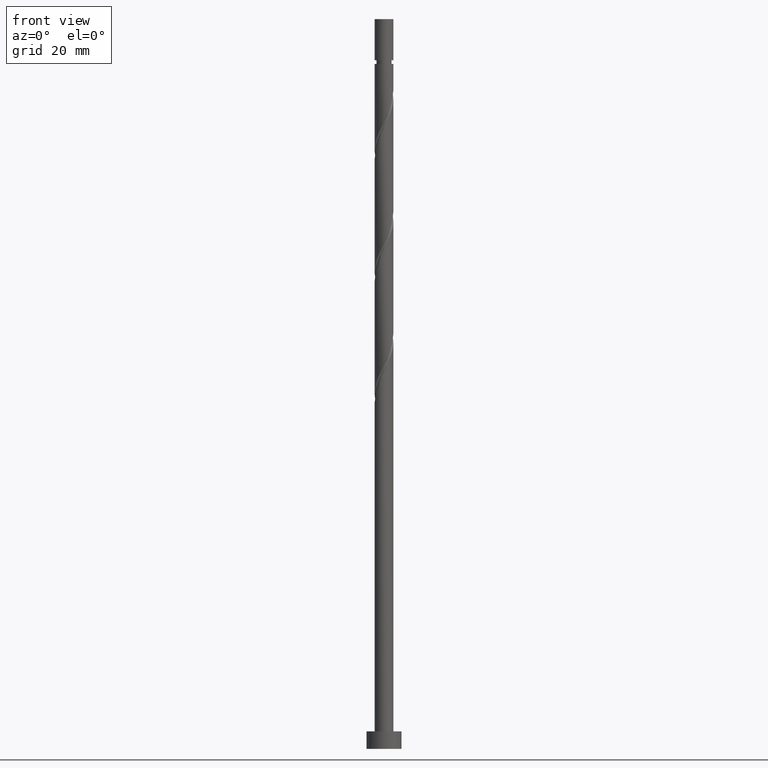
[diagram: clean part render]
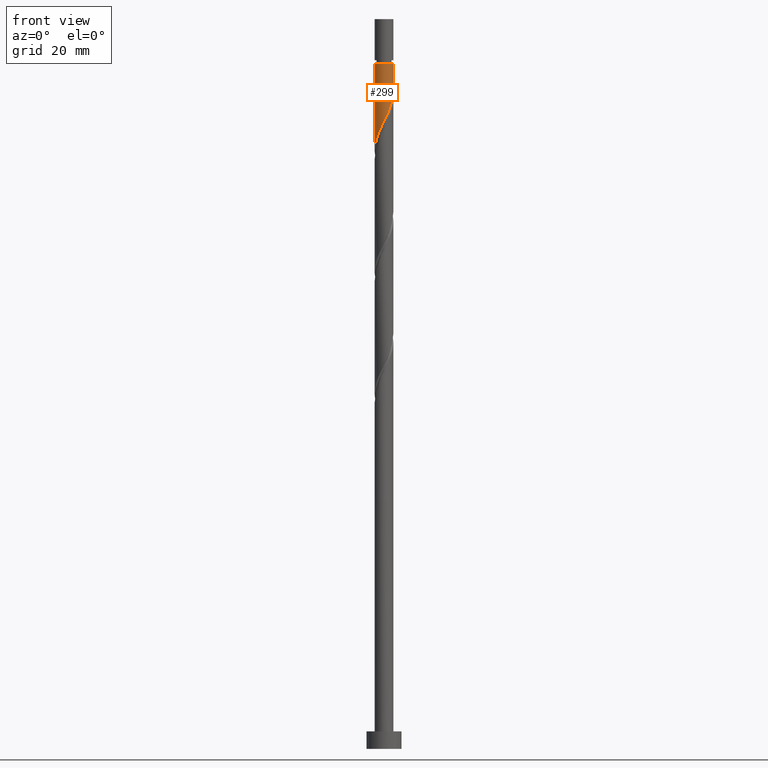
[diagram: same view with one face highlighted and labeled with its STEP entity id]
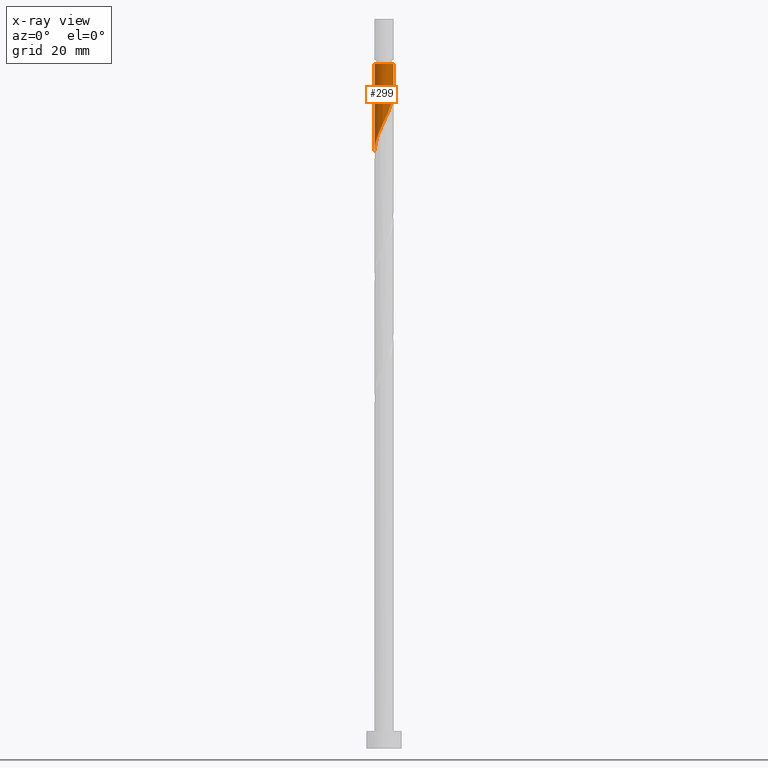
[diagram: x-ray of the same camera — body ghosted, the highlighted face saturated]
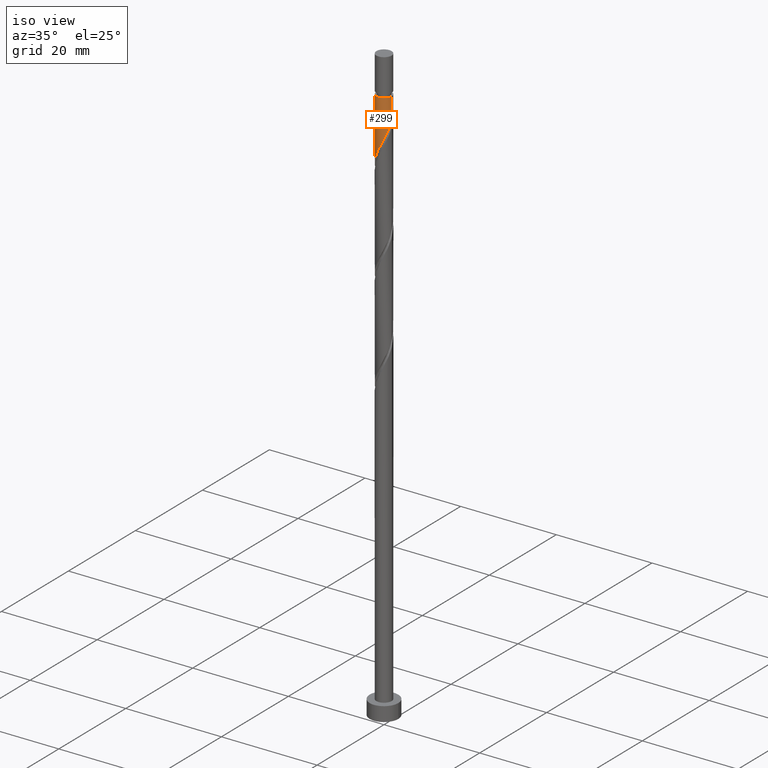
[diagram: same view with one face highlighted and labeled with its STEP entity id]
A machine part, front view. The second image highlights one B-rep face of the part: STEP entity #299.
The next image is the same camera in x-ray: the body ghosted, the highlighted face saturated — about 0% of this face is hidden behind the body in this view.
A second angle (iso view) of the same face is appended — the face is thin or edge-on in the first view.
In plain terms, the highlighted cylindrical surface (edge-blend (fillet) strip) has radius 1.6 mm, axis along (-0, -0, -1).
Its self-contained STEP definition (entity closure, byte-faithful):
#30 = CARTESIAN_POINT ( 'NONE',  ( -1.599999999999999645, -0.09115797991428821467, 102.5375994344350801 ) ) ;
#58 = ORIENTED_EDGE ( 'NONE', *, *, #640, .T. ) ;
#59 = CARTESIAN_POINT ( 'NONE',  ( 0.6640595169357718097, -1.455687108539134966, 108.9749525704242359 ) ) ;
#67 = CARTESIAN_POINT ( 'NONE',  ( 1.599999999999999423, 6.072206627198340509E-16, 112.7647550118944793 ) ) ;
#121 = DIRECTION ( 'NONE',  ( -0.000000000000000000, -0.000000000000000000, -1.000000000000000000 ) ) ;
#145 = CARTESIAN_POINT ( 'NONE',  ( -1.599999999999999645, 1.454330969970960778E-15, 102.3480883452278221 ) ) ;
#221 = DIRECTION ( 'NONE',  ( -0.000000000000000000, -0.000000000000000000, -1.000000000000000000 ) ) ;
#241 = CARTESIAN_POINT ( 'NONE',  ( 0.000000000000000000, 0.000000000000000000, 125.0000000000000000 ) ) ;
#254 = EDGE_CURVE ( 'NONE', #362, #652, #1472, .T. ) ;
#283 = CARTESIAN_POINT ( 'NONE',  ( -0.07004917744524610801, -1.618428969073944179, 107.4124525704242217 ) ) ;
#299 = ADVANCED_FACE ( 'NONE', ( #963 ), #1441, .T. ) ;
#302 = CARTESIAN_POINT ( 'NONE',  ( 1.081390185820699124, -1.179235034253423464, 110.0166192370908789 ) ) ;
#310 = CARTESIAN_POINT ( 'NONE',  ( -1.589646386272566492, -0.1817260757584560626, 102.7249525704242359 ) ) ;
#362 = VERTEX_POINT ( 'NONE', #67 ) ;
#414 = LINE ( 'NONE', #1273, #555 ) ;
#419 = CARTESIAN_POINT ( 'NONE',  ( -1.455687108539134966, -0.6640595169357718097, 103.7666192370908931 ) ) ;
#478 = VECTOR ( 'NONE', #1434, 1000.000000000000000 ) ;
#505 = CARTESIAN_POINT ( 'NONE',  ( -0.3183959798741189395, -1.568000000000000060, 106.8916192370908647 ) ) ;
#521 = CARTESIAN_POINT ( 'NONE',  ( 0.1817260757584559516, -1.589646386272566492, 107.9332859037575503 ) ) ;
#534 = ORIENTED_EDGE ( 'NONE', *, *, #660, .T. ) ;
#538 = CARTESIAN_POINT ( 'NONE',  ( 0.4335013289621581500, -1.560863803471189248, 108.4541192370909073 ) ) ;
#555 = VECTOR ( 'NONE', #761, 1000.000000000000000 ) ;
#577 = LINE ( 'NONE', #957, #478 ) ;
#640 = EDGE_CURVE ( 'NONE', #732, #1321, #895, .T. ) ;
#652 = VERTEX_POINT ( 'NONE', #1193 ) ;
#660 = EDGE_CURVE ( 'NONE', #1321, #652, #577, .T. ) ;
#709 = CARTESIAN_POINT ( 'NONE',  ( 0.000000000000000000, 0.000000000000000000, 117.3082859037575645 ) ) ;
#717 = CARTESIAN_POINT ( 'NONE',  ( 1.599999999999997868, 1.959434878635763504E-16, 117.3082859037575645 ) ) ;
#732 = VERTEX_POINT ( 'NONE', #717 ) ;
#761 = DIRECTION ( 'NONE',  ( -0.000000000000000000, -0.000000000000000000, -1.000000000000000000 ) ) ;
#766 = CARTESIAN_POINT ( 'NONE',  ( -1.007959654899765578, -1.268162666732013166, 105.3291192370908647 ) ) ;
#775 = EDGE_LOOP ( 'NONE', ( #944, #58, #534, #908 ) ) ;
#808 = CARTESIAN_POINT ( 'NONE',  ( 1.600000000000000755, -0.1608060504414683678, 112.4304504364866375 ) ) ;
#895 = CIRCLE ( 'NONE', #1203, 1.599999999999997868 ) ;
#908 = ORIENTED_EDGE ( 'NONE', *, *, #254, .F. ) ;
#915 = CARTESIAN_POINT ( 'NONE',  ( -1.560863803471189248, -0.4335013289621583721, 103.2457859037575929 ) ) ;
#944 = ORIENTED_EDGE ( 'NONE', *, *, #967, .F. ) ;
#957 = CARTESIAN_POINT ( 'NONE',  ( -1.600000000000000089, 0.000000000000000000, 125.0000000000000000 ) ) ;
#963 = FACE_OUTER_BOUND ( 'NONE', #775, .T. ) ;
#967 = EDGE_CURVE ( 'NONE', #732, #362, #414, .T. ) ;
#1000 = CARTESIAN_POINT ( 'NONE',  ( 1.392866848829034110, -0.7873512186013785774, 111.0582859037575645 ) ) ;
#1029 = CARTESIAN_POINT ( 'NONE',  ( -0.5667427823029919098, -1.517571030926054831, 106.3707859037575645 ) ) ;
#1154 = CARTESIAN_POINT ( 'NONE',  ( 1.268162666732013166, -1.007959654899765800, 110.5374525704242359 ) ) ;
#1193 = CARTESIAN_POINT ( 'NONE',  ( -1.599999999999999645, 1.454330969970960778E-15, 102.3480883452278078 ) ) ;
#1203 = AXIS2_PLACEMENT_3D ( 'NONE', #709, #221, #1548 ) ;
#1257 = CARTESIAN_POINT ( 'NONE',  ( -1.350510413607081350, -0.8946177049093855249, 104.2874525704242359 ) ) ;
#1265 = CARTESIAN_POINT ( 'NONE',  ( 1.517571030926054831, -0.5667427823029919098, 111.5791192370909073 ) ) ;
#1273 = CARTESIAN_POINT ( 'NONE',  ( 1.600000000000000089, 1.959434878635764737E-16, 125.0000000000000000 ) ) ;
#1296 = CARTESIAN_POINT ( 'NONE',  ( -1.599999999999997868, 0.000000000000000000, 117.3082859037575645 ) ) ;
#1321 = VERTEX_POINT ( 'NONE', #1296 ) ;
#1372 = CARTESIAN_POINT ( 'NONE',  ( 0.8946177049093853029, -1.350510413607081350, 109.4957859037575645 ) ) ;
#1381 = CARTESIAN_POINT ( 'NONE',  ( -1.179235034253423464, -1.081390185820699124, 104.8082859037575503 ) ) ;
#1431 = DIRECTION ( 'NONE',  ( -1.000000000000000000, 0.000000000000000000, 0.000000000000000000 ) ) ;
#1434 = DIRECTION ( 'NONE',  ( -0.000000000000000000, -0.000000000000000000, -1.000000000000000000 ) ) ;
#1438 = AXIS2_PLACEMENT_3D ( 'NONE', #241, #121, #1431 ) ;
#1441 = CYLINDRICAL_SURFACE ( 'NONE', #1438, 1.600000000000000089 ) ;
#1472 =( BOUNDED_CURVE ( )  B_SPLINE_CURVE ( 2, ( #1536, #808, #1484, #1265, #1000, #1154, #302, #1372, #59, #538, #521, #283, #505, #1029, #1517, #766, #1381, #1257, #419, #915, #310, #30, #145 ),
 .UNSPECIFIED., .F., .T. ) 
 B_SPLINE_CURVE_WITH_KNOTS ( ( 3, 2, 2, 2, 2, 2, 2, 2, 2, 2, 2, 3 ),
 ( 0.3045322023138548606, 0.3125000000000000000, 0.3250000000000000111, 0.3375000000000000222, 0.3499999999999999778, 0.3624999999999999889, 0.3750000000000000000, 0.3875000000000000111, 0.4000000000000000222, 0.4124999999999999778, 0.4249999999999999889, 0.4295322023138553602 ),
 .UNSPECIFIED. ) 
 CURVE ( )  GEOMETRIC_REPRESENTATION_ITEM ( )  RATIONAL_B_SPLINE_CURVE ( ( 0.9039174447099367349, 0.9019565955404655888, 0.9090909090909141677, 0.8978984914501302317, 0.9090909090909141677, 0.8978984914501302317, 0.9090909090909141677, 0.8978984914501302317, 0.9090909090909141677, 0.8978984914501302317, 0.9090909090909141677, 0.8978984914501302317, 0.9090909090909141677, 0.8978984914501302317, 0.9090909090909141677, 0.8978984914501302317, 0.9090909090909141677, 0.8978984914501302317, 0.9090909090909141677, 0.8978984914501302317, 0.9090909090909141677, 0.9050328050005784775, 0.9039174447099365128 ) ) 
 REPRESENTATION_ITEM ( '' )  );
#1484 = CARTESIAN_POINT ( 'NONE',  ( 1.568000000000000060, -0.3183959798741189950, 112.0999525704242075 ) ) ;
#1517 = CARTESIAN_POINT ( 'NONE',  ( -0.7873512186013785774, -1.392866848829034110, 105.8499525704242643 ) ) ;
#1536 = CARTESIAN_POINT ( 'NONE',  ( 1.599999999999999423, 6.072206627198340509E-16, 112.7647550118944793 ) ) ;
#1548 = DIRECTION ( 'NONE',  ( -1.000000000000000000, 0.000000000000000000, 0.000000000000000000 ) ) ;